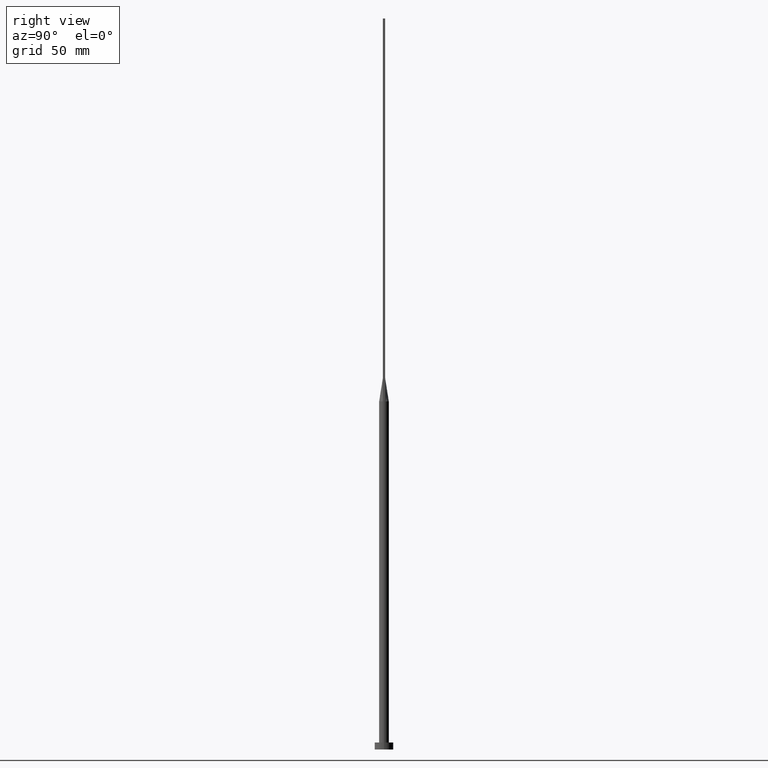
[diagram: clean part render]
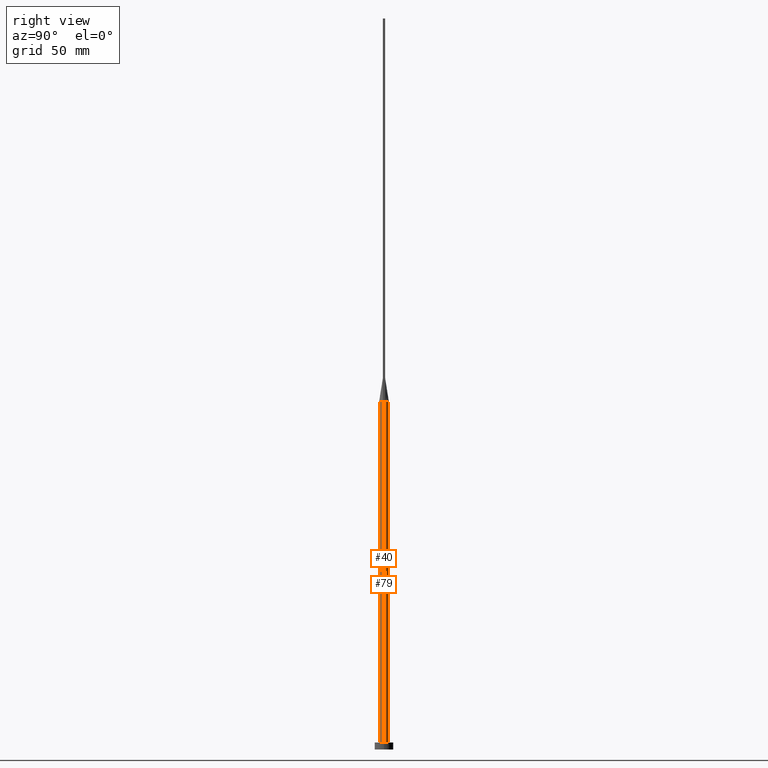
[diagram: same view with one multi-face feature highlighted, each face labeled with its STEP entity id]
A machine part, right view. The highlighted faces form ONE feature: a constant-radius fillet chain: 2 tangent blend faces with common blend radius 2.1 mm. The faces share edges in the B-rep.
Their STEP definitions:
[1] entity #40 (Cylinder):
#1 = VERTEX_POINT ( 'NONE', #473 ) ;
#5 = AXIS2_PLACEMENT_3D ( 'NONE', #356, #500, #581 ) ;
#30 = CARTESIAN_POINT ( 'NONE',  ( 2.100000000000000089, 2.571758278209441957E-16, 3.000000000000000000 ) ) ;
#35 = AXIS2_PLACEMENT_3D ( 'NONE', #221, #265, #363 ) ;
#40 = ADVANCED_FACE ( 'NONE', ( #274 ), #446, .T. ) ;
#52 = AXIS2_PLACEMENT_3D ( 'NONE', #206, #391, #566 ) ;
#55 = ORIENTED_EDGE ( 'NONE', *, *, #286, .F. ) ;
#70 = AXIS2_PLACEMENT_3D ( 'NONE', #295, #311, #567 ) ;
#101 = CIRCLE ( 'NONE', #52, 2.100000000000000089 ) ;
#106 = EDGE_CURVE ( 'NONE', #556, #378, #471, .T. ) ;
#122 = CARTESIAN_POINT ( 'NONE',  ( 2.100000000000000089, 3.372022381799045987E-17, 149.9999999999999716 ) ) ;
#138 = CIRCLE ( 'NONE', #148, 2.100000000000000089 ) ;
#144 = CARTESIAN_POINT ( 'NONE',  ( 0.000000000000000000, 0.000000000000000000, 150.0000000000000000 ) ) ;
#148 = AXIS2_PLACEMENT_3D ( 'NONE', #144, #552, #341 ) ;
#164 = CARTESIAN_POINT ( 'NONE',  ( -2.100000000000000089, 0.000000000000000000, 3.000000000000000000 ) ) ;
#171 = LINE ( 'NONE', #410, #219 ) ;
#177 = VERTEX_POINT ( 'NONE', #30 ) ;
#197 = DIRECTION ( 'NONE',  ( -0.000000000000000000, -0.000000000000000000, -1.000000000000000000 ) ) ;
#206 = CARTESIAN_POINT ( 'NONE',  ( 0.000000000000000000, 0.000000000000000000, 3.000000000000000000 ) ) ;
#217 = CARTESIAN_POINT ( 'NONE',  ( -2.031004407172260162, -0.5344754071304557153, 150.0000000000000000 ) ) ;
#219 = VECTOR ( 'NONE', #320, 1000.000000000000000 ) ;
#221 = CARTESIAN_POINT ( 'NONE',  ( 0.000000000000000000, 0.000000000000000000, 150.0000000000000000 ) ) ;
#239 = ORIENTED_EDGE ( 'NONE', *, *, #468, .F. ) ;
#265 = DIRECTION ( 'NONE',  ( 0.000000000000000000, 0.000000000000000000, 1.000000000000000000 ) ) ;
#274 = FACE_OUTER_BOUND ( 'NONE', #314, .T. ) ;
#286 = EDGE_CURVE ( 'NONE', #378, #1, #138, .T. ) ;
#293 = CARTESIAN_POINT ( 'NONE',  ( -2.100000000000000089, 0.000000000000000000, 150.0000000000000000 ) ) ;
#295 = CARTESIAN_POINT ( 'NONE',  ( 0.000000000000000000, 0.000000000000000000, 150.0000000000000000 ) ) ;
#307 = ORIENTED_EDGE ( 'NONE', *, *, #361, .T. ) ;
#311 = DIRECTION ( 'NONE',  ( 0.000000000000000000, 0.000000000000000000, 1.000000000000000000 ) ) ;
#314 = EDGE_LOOP ( 'NONE', ( #239, #565, #55, #543, #365, #307 ) ) ;
#318 = VERTEX_POINT ( 'NONE', #122 ) ;
#320 = DIRECTION ( 'NONE',  ( -0.000000000000000000, -0.000000000000000000, -1.000000000000000000 ) ) ;
#341 = DIRECTION ( 'NONE',  ( 1.000000000000000000, 0.000000000000000000, 0.000000000000000000 ) ) ;
#356 = CARTESIAN_POINT ( 'NONE',  ( 0.000000000000000000, 0.000000000000000000, 150.0000000000000000 ) ) ;
#361 = EDGE_CURVE ( 'NONE', #407, #177, #101, .T. ) ;
#363 = DIRECTION ( 'NONE',  ( 1.000000000000000000, 0.000000000000000000, 0.000000000000000000 ) ) ;
#365 = ORIENTED_EDGE ( 'NONE', *, *, #505, .T. ) ;
#368 = CIRCLE ( 'NONE', #70, 2.100000000000000089 ) ;
#378 = VERTEX_POINT ( 'NONE', #217 ) ;
#391 = DIRECTION ( 'NONE',  ( 0.000000000000000000, 0.000000000000000000, 1.000000000000000000 ) ) ;
#407 = VERTEX_POINT ( 'NONE', #164 ) ;
#410 = CARTESIAN_POINT ( 'NONE',  ( 2.100000000000000089, 2.571758278209441957E-16, 150.0000000000000000 ) ) ;
#446 = CYLINDRICAL_SURFACE ( 'NONE', #5, 2.100000000000000089 ) ;
#468 = EDGE_CURVE ( 'NONE', #318, #177, #171, .T. ) ;
#471 = CIRCLE ( 'NONE', #35, 2.100000000000000089 ) ;
#473 = CARTESIAN_POINT ( 'NONE',  ( 2.031027953490633031, -0.5344816358097418396, 150.0000000000000000 ) ) ;
#499 = EDGE_CURVE ( 'NONE', #1, #318, #368, .T. ) ;
#500 = DIRECTION ( 'NONE',  ( -0.000000000000000000, -0.000000000000000000, -1.000000000000000000 ) ) ;
#505 = EDGE_CURVE ( 'NONE', #556, #407, #527, .T. ) ;
#527 = LINE ( 'NONE', #293, #554 ) ;
#543 = ORIENTED_EDGE ( 'NONE', *, *, #106, .F. ) ;
#552 = DIRECTION ( 'NONE',  ( 0.000000000000000000, 0.000000000000000000, 1.000000000000000000 ) ) ;
#554 = VECTOR ( 'NONE', #197, 1000.000000000000000 ) ;
#556 = VERTEX_POINT ( 'NONE', #564 ) ;
#564 = CARTESIAN_POINT ( 'NONE',  ( -2.100000000000000089, -1.080980291041873360E-16, 150.0000000000000000 ) ) ;
#565 = ORIENTED_EDGE ( 'NONE', *, *, #499, .F. ) ;
#566 = DIRECTION ( 'NONE',  ( 1.000000000000000000, 0.000000000000000000, 0.000000000000000000 ) ) ;
#567 = DIRECTION ( 'NONE',  ( 1.000000000000000000, 4.440892098500626951E-15, 0.000000000000000000 ) ) ;
#581 = DIRECTION ( 'NONE',  ( -1.000000000000000000, 0.000000000000000000, 0.000000000000000000 ) ) ;
[2] entity #79 (Cylinder):
#2 = AXIS2_PLACEMENT_3D ( 'NONE', #145, #16, #108 ) ;
#16 = DIRECTION ( 'NONE',  ( 0.000000000000000000, 0.000000000000000000, 1.000000000000000000 ) ) ;
#20 = AXIS2_PLACEMENT_3D ( 'NONE', #498, #87, #448 ) ;
#27 = AXIS2_PLACEMENT_3D ( 'NONE', #271, #124, #133 ) ;
#28 = VERTEX_POINT ( 'NONE', #452 ) ;
#30 = CARTESIAN_POINT ( 'NONE',  ( 2.100000000000000089, 2.571758278209441957E-16, 3.000000000000000000 ) ) ;
#33 = ORIENTED_EDGE ( 'NONE', *, *, #272, .F. ) ;
#63 = CIRCLE ( 'NONE', #27, 2.100000000000000089 ) ;
#69 = CARTESIAN_POINT ( 'NONE',  ( 1.583604922800830428, 1.399063468093436624, 150.0000000000000000 ) ) ;
#74 = CARTESIAN_POINT ( 'NONE',  ( -1.987786580065029174, 0.6981017315960602598, 150.0000000000000000 ) ) ;
#77 = CARTESIAN_POINT ( 'NONE',  ( -1.583604922800830428, 1.399063468093436402, 150.0000000000000000 ) ) ;
#79 = ADVANCED_FACE ( 'NONE', ( #369 ), #454, .T. ) ;
#87 = DIRECTION ( 'NONE',  ( 0.000000000000000000, 0.000000000000000000, 1.000000000000000000 ) ) ;
#95 = EDGE_CURVE ( 'NONE', #318, #163, #63, .T. ) ;
#107 = CARTESIAN_POINT ( 'NONE',  ( 2.030996101999494652, 0.5344731476277209126, 150.0000000000000000 ) ) ;
#108 = DIRECTION ( 'NONE',  ( 1.000000000000000000, 0.000000000000000000, 0.000000000000000000 ) ) ;
#113 = CARTESIAN_POINT ( 'NONE',  ( 1.719043754744862040, 1.223020672007445464, 149.9999999999999716 ) ) ;
#122 = CARTESIAN_POINT ( 'NONE',  ( 2.100000000000000089, 3.372022381799045987E-17, 149.9999999999999716 ) ) ;
#124 = DIRECTION ( 'NONE',  ( 0.000000000000000000, 0.000000000000000000, 1.000000000000000000 ) ) ;
#133 = DIRECTION ( 'NONE',  ( 1.000000000000000000, 0.000000000000000000, 0.000000000000000000 ) ) ;
#145 = CARTESIAN_POINT ( 'NONE',  ( 0.000000000000000000, 0.000000000000000000, 150.0000000000000000 ) ) ;
#150 = CARTESIAN_POINT ( 'NONE',  ( -1.920830191244604412, 0.8725264301372623876, 150.0000000000000000 ) ) ;
#156 = CARTESIAN_POINT ( 'NONE',  ( -0.5389299406762299016, 2.046272663899431965, 150.0000000000000000 ) ) ;
#160 = CIRCLE ( 'NONE', #20, 2.100000000000000089 ) ;
#162 = CARTESIAN_POINT ( 'NONE',  ( -0.2698109971861040179, 2.100000000000000089, 149.9999999999999716 ) ) ;
#163 = VERTEX_POINT ( 'NONE', #350 ) ;
#164 = CARTESIAN_POINT ( 'NONE',  ( -2.100000000000000089, 0.000000000000000000, 3.000000000000000000 ) ) ;
#169 = CARTESIAN_POINT ( 'NONE',  ( 0.000000000000000000, 0.000000000000000000, 150.0000000000000000 ) ) ;
#171 = LINE ( 'NONE', #410, #219 ) ;
#177 = VERTEX_POINT ( 'NONE', #30 ) ;
#183 = ORIENTED_EDGE ( 'NONE', *, *, #370, .T. ) ;
#190 = ORIENTED_EDGE ( 'NONE', *, *, #505, .F. ) ;
#193 = CARTESIAN_POINT ( 'NONE',  ( 0.2698109971861041290, 2.100000000000000089, 149.9999999999999716 ) ) ;
#197 = DIRECTION ( 'NONE',  ( -0.000000000000000000, -0.000000000000000000, -1.000000000000000000 ) ) ;
#214 = EDGE_CURVE ( 'NONE', #163, #28, #441, .T. ) ;
#219 = VECTOR ( 'NONE', #320, 1000.000000000000000 ) ;
#271 = CARTESIAN_POINT ( 'NONE',  ( 0.000000000000000000, 0.000000000000000000, 150.0000000000000000 ) ) ;
#272 = EDGE_CURVE ( 'NONE', #28, #556, #513, .T. ) ;
#289 = CARTESIAN_POINT ( 'NONE',  ( 1.920830191244603746, 0.8725264301372623876, 149.9999999999999716 ) ) ;
#293 = CARTESIAN_POINT ( 'NONE',  ( -2.100000000000000089, 0.000000000000000000, 150.0000000000000000 ) ) ;
#305 = CARTESIAN_POINT ( 'NONE',  ( 1.021961681204346606, 1.852908961101259244, 150.0000000000000284 ) ) ;
#315 = DIRECTION ( 'NONE',  ( -0.000000000000000000, -0.000000000000000000, -1.000000000000000000 ) ) ;
#318 = VERTEX_POINT ( 'NONE', #122 ) ;
#320 = DIRECTION ( 'NONE',  ( -0.000000000000000000, -0.000000000000000000, -1.000000000000000000 ) ) ;
#321 = DIRECTION ( 'NONE',  ( -1.000000000000000000, 0.000000000000000000, 0.000000000000000000 ) ) ;
#350 = CARTESIAN_POINT ( 'NONE',  ( 2.030996101999494652, 0.5344731476277209126, 150.0000000000000000 ) ) ;
#362 = EDGE_LOOP ( 'NONE', ( #532, #561, #183, #190, #33, #405 ) ) ;
#370 = EDGE_CURVE ( 'NONE', #177, #407, #160, .T. ) ;
#369 = FACE_OUTER_BOUND ( 'NONE', #362, .T. ) ;
#380 = CARTESIAN_POINT ( 'NONE',  ( -1.021961681204346384, 1.852908961101259022, 150.0000000000000000 ) ) ;
#382 = CARTESIAN_POINT ( 'NONE',  ( -1.719043754744861596, 1.223020672007445242, 149.9999999999999716 ) ) ;
#400 = AXIS2_PLACEMENT_3D ( 'NONE', #169, #315, #321 ) ;
#405 = ORIENTED_EDGE ( 'NONE', *, *, #214, .F. ) ;
#407 = VERTEX_POINT ( 'NONE', #164 ) ;
#410 = CARTESIAN_POINT ( 'NONE',  ( 2.100000000000000089, 2.571758278209441957E-16, 150.0000000000000000 ) ) ;
#420 = CARTESIAN_POINT ( 'NONE',  ( 0.5389299406762297906, 2.046272663899431077, 150.0000000000000000 ) ) ;
#422 = CARTESIAN_POINT ( 'NONE',  ( -1.235326090059014836, 1.714395692508636326, 150.0000000000000000 ) ) ;
#441 = B_SPLINE_CURVE_WITH_KNOTS ( 'NONE', 3,
 ( #107, #481, #289, #113, #69, #557, #305, #420, #193, #162, #156, #380, #422, #77, #382, #150, #74, #553 ),
 .UNSPECIFIED., .F., .F.,
 ( 4, 2, 2, 2, 2, 2, 2, 2, 4 ),
 ( 0.000000000000000000, 0.1250000000000000278, 0.2500000000000000555, 0.3750000000000001110, 0.5000000000000000000, 0.6250000000000000000, 0.7500000000000000000, 0.8750000000000001110, 1.000000000000000000 ),
 .UNSPECIFIED. ) ;
#448 = DIRECTION ( 'NONE',  ( 1.000000000000000000, 0.000000000000000000, 0.000000000000000000 ) ) ;
#452 = CARTESIAN_POINT ( 'NONE',  ( -2.031019593402089818, 0.5344793603115657321, 150.0000000000000000 ) ) ;
#454 = CYLINDRICAL_SURFACE ( 'NONE', #400, 2.100000000000000089 ) ;
#468 = EDGE_CURVE ( 'NONE', #318, #177, #171, .T. ) ;
#481 = CARTESIAN_POINT ( 'NONE',  ( 1.987786580065029174, 0.6981017315960605929, 150.0000000000000284 ) ) ;
#498 = CARTESIAN_POINT ( 'NONE',  ( 0.000000000000000000, 0.000000000000000000, 3.000000000000000000 ) ) ;
#505 = EDGE_CURVE ( 'NONE', #556, #407, #527, .T. ) ;
#513 = CIRCLE ( 'NONE', #2, 2.100000000000000089 ) ;
#527 = LINE ( 'NONE', #293, #554 ) ;
#532 = ORIENTED_EDGE ( 'NONE', *, *, #95, .F. ) ;
#553 = CARTESIAN_POINT ( 'NONE',  ( -2.031019593402089818, 0.5344793603115657321, 150.0000000000000000 ) ) ;
#554 = VECTOR ( 'NONE', #197, 1000.000000000000000 ) ;
#556 = VERTEX_POINT ( 'NONE', #564 ) ;
#557 = CARTESIAN_POINT ( 'NONE',  ( 1.235326090059014614, 1.714395692508636770, 150.0000000000000568 ) ) ;
#561 = ORIENTED_EDGE ( 'NONE', *, *, #468, .T. ) ;
#564 = CARTESIAN_POINT ( 'NONE',  ( -2.100000000000000089, -1.080980291041873360E-16, 150.0000000000000000 ) ) ;